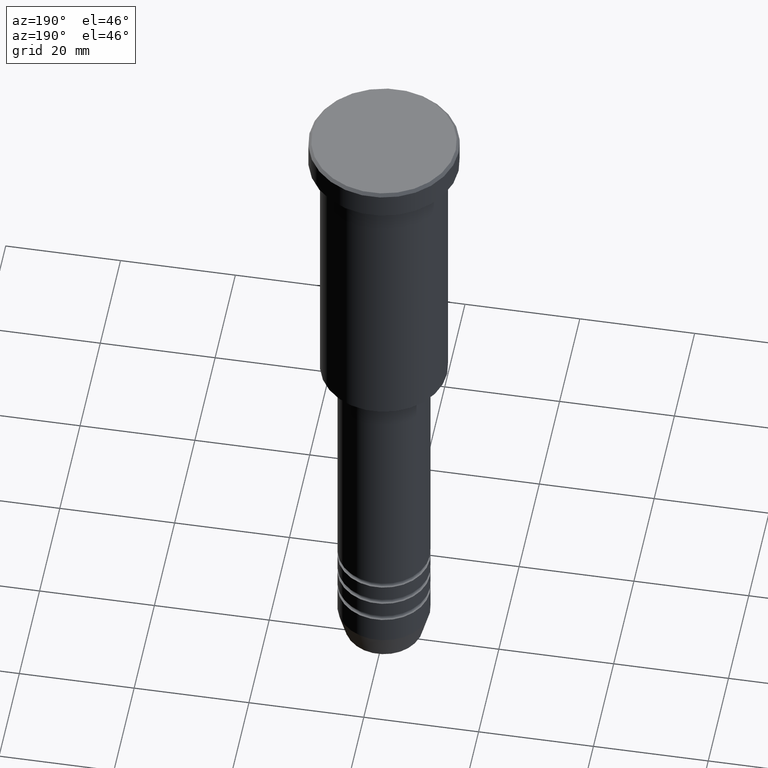
[diagram: clean part render]
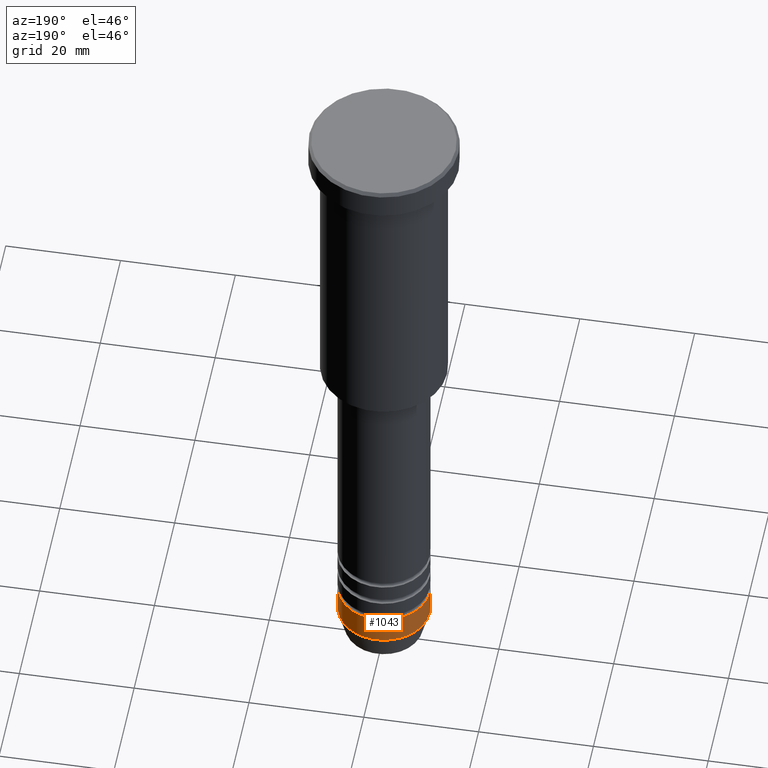
[diagram: same view with one face highlighted and labeled with its STEP entity id]
A machine part, auxiliary view. The second image highlights one B-rep face of the part: STEP entity #1043.
In plain terms, the highlighted cylindrical surface (partial cylindrical patch) has radius 8 mm, axis along (-0, -0, 1).
Its self-contained STEP definition (entity closure, byte-faithful):
#1 = DIRECTION ( 'NONE',  ( -0.000000000000000000, -0.000000000000000000, 1.000000000000000000 ) ) ;
#39 = AXIS2_PLACEMENT_3D ( 'NONE', #1091, #1, #658 ) ;
#41 = ORIENTED_EDGE ( 'NONE', *, *, #729, .F. ) ;
#44 = VERTEX_POINT ( 'NONE', #147 ) ;
#113 = CARTESIAN_POINT ( 'NONE',  ( 0.000000000000000000, 0.000000000000000000, -114.9999999999999858 ) ) ;
#130 = VERTEX_POINT ( 'NONE', #808 ) ;
#147 = CARTESIAN_POINT ( 'NONE',  ( -8.000000000000000000, 9.797174393178825657E-16, -109.9999999999999858 ) ) ;
#183 = VECTOR ( 'NONE', #787, 1000.000000000000000 ) ;
#226 = DIRECTION ( 'NONE',  ( -0.000000000000000000, -0.000000000000000000, 1.000000000000000000 ) ) ;
#258 = AXIS2_PLACEMENT_3D ( 'NONE', #487, #226, #1133 ) ;
#294 = CIRCLE ( 'NONE', #1046, 8.000000000000000000 ) ;
#413 = CIRCLE ( 'NONE', #39, 8.000000000000000000 ) ;
#422 = EDGE_CURVE ( 'NONE', #683, #581, #888, .T. ) ;
#487 = CARTESIAN_POINT ( 'NONE',  ( 0.000000000000000000, 0.000000000000000000, 0.000000000000000000 ) ) ;
#491 = EDGE_CURVE ( 'NONE', #130, #44, #921, .T. ) ;
#494 = DIRECTION ( 'NONE',  ( 1.000000000000000000, 0.000000000000000000, 0.000000000000000000 ) ) ;
#529 = EDGE_CURVE ( 'NONE', #683, #130, #294, .T. ) ;
#536 = ORIENTED_EDGE ( 'NONE', *, *, #529, .T. ) ;
#581 = VERTEX_POINT ( 'NONE', #823 ) ;
#598 = CARTESIAN_POINT ( 'NONE',  ( 8.000000000000000000, 0.000000000000000000, 0.000000000000000000 ) ) ;
#658 = DIRECTION ( 'NONE',  ( 1.000000000000000000, 0.000000000000000000, 0.000000000000000000 ) ) ;
#660 = DIRECTION ( 'NONE',  ( -0.000000000000000000, -0.000000000000000000, 1.000000000000000000 ) ) ;
#663 = VECTOR ( 'NONE', #672, 1000.000000000000000 ) ;
#672 = DIRECTION ( 'NONE',  ( -0.000000000000000000, -0.000000000000000000, 1.000000000000000000 ) ) ;
#683 = VERTEX_POINT ( 'NONE', #758 ) ;
#729 = EDGE_CURVE ( 'NONE', #581, #44, #413, .T. ) ;
#758 = CARTESIAN_POINT ( 'NONE',  ( 8.000000000000000000, 0.000000000000000000, -114.9999999999999858 ) ) ;
#763 = ORIENTED_EDGE ( 'NONE', *, *, #491, .T. ) ;
#777 = FACE_OUTER_BOUND ( 'NONE', #801, .T. ) ;
#787 = DIRECTION ( 'NONE',  ( -0.000000000000000000, -0.000000000000000000, 1.000000000000000000 ) ) ;
#801 = EDGE_LOOP ( 'NONE', ( #536, #763, #41, #1097 ) ) ;
#808 = CARTESIAN_POINT ( 'NONE',  ( -8.000000000000000000, 9.797174393178825657E-16, -114.9999999999999858 ) ) ;
#823 = CARTESIAN_POINT ( 'NONE',  ( 8.000000000000000000, 0.000000000000000000, -109.9999999999999858 ) ) ;
#851 = CARTESIAN_POINT ( 'NONE',  ( -8.000000000000000000, 9.797174393178825657E-16, 0.000000000000000000 ) ) ;
#888 = LINE ( 'NONE', #598, #183 ) ;
#921 = LINE ( 'NONE', #851, #663 ) ;
#1043 = ADVANCED_FACE ( 'NONE', ( #777 ), #1111, .T. ) ;
#1046 = AXIS2_PLACEMENT_3D ( 'NONE', #113, #660, #494 ) ;
#1091 = CARTESIAN_POINT ( 'NONE',  ( 0.000000000000000000, 0.000000000000000000, -109.9999999999999858 ) ) ;
#1097 = ORIENTED_EDGE ( 'NONE', *, *, #422, .F. ) ;
#1111 = CYLINDRICAL_SURFACE ( 'NONE', #258, 8.000000000000000000 ) ;
#1133 = DIRECTION ( 'NONE',  ( 1.000000000000000000, 0.000000000000000000, 0.000000000000000000 ) ) ;